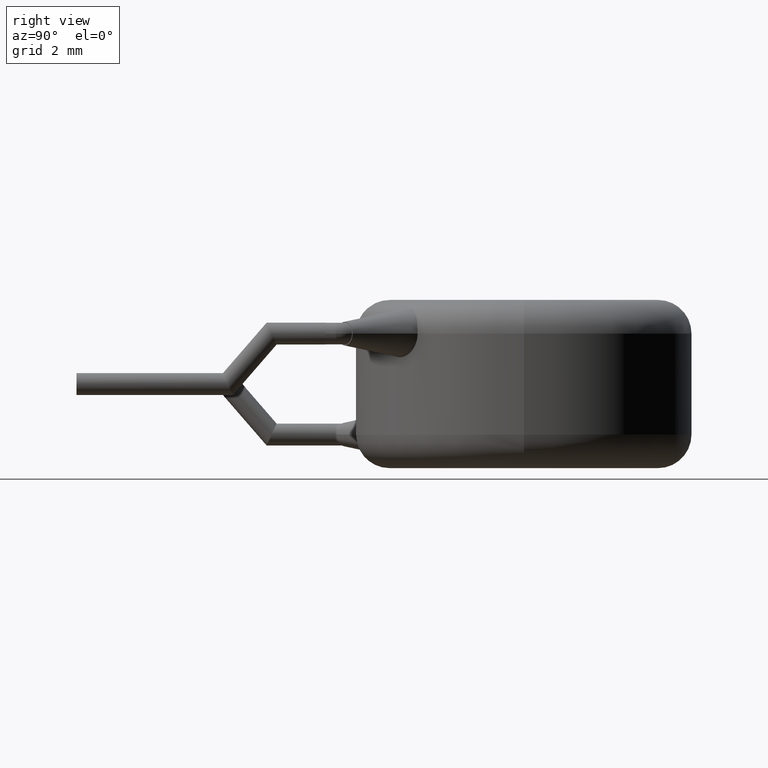
[diagram: clean part render]
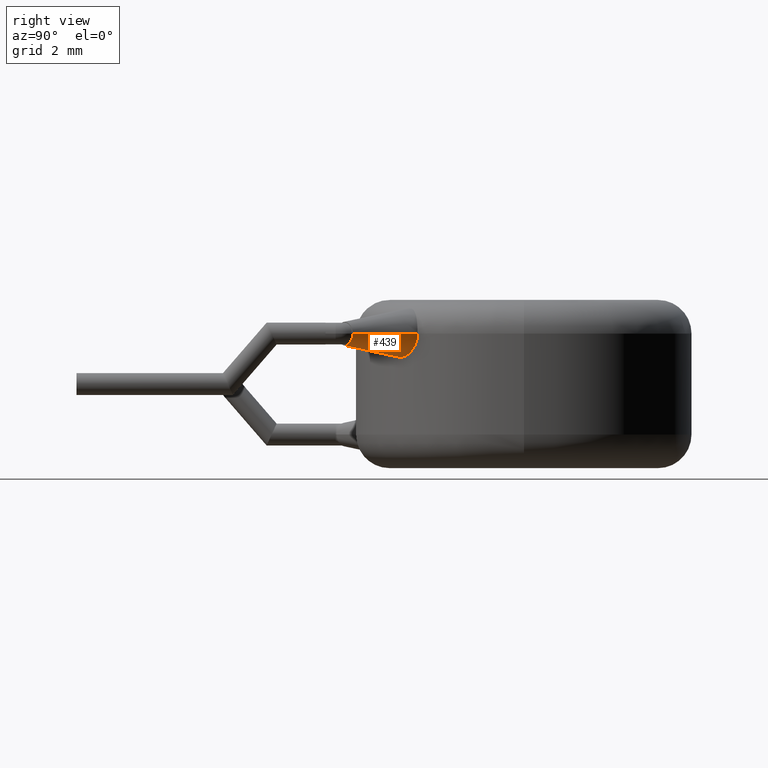
[diagram: same view with one face highlighted and labeled with its STEP entity id]
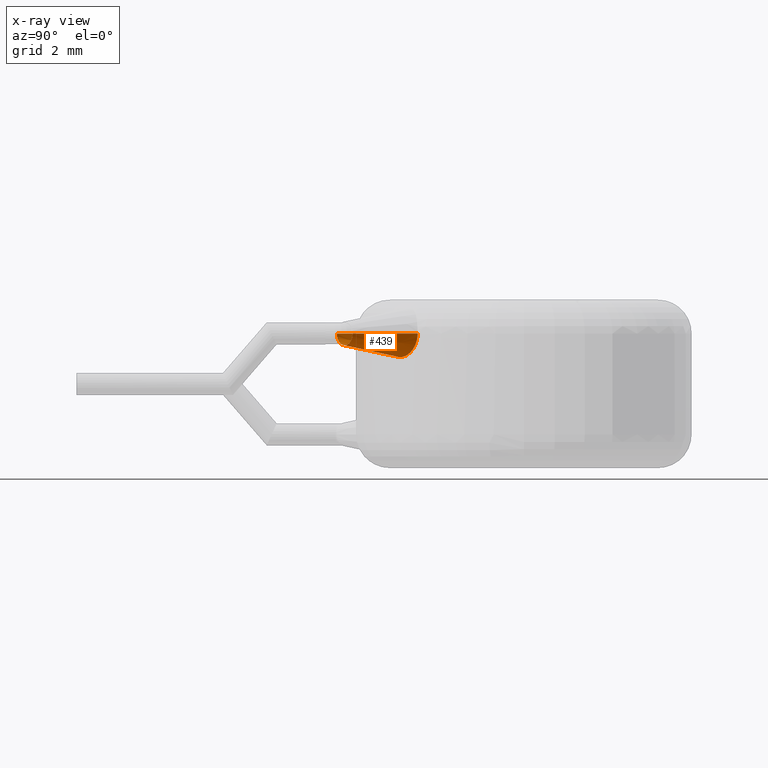
[diagram: x-ray of the same camera — body ghosted, the highlighted face saturated]
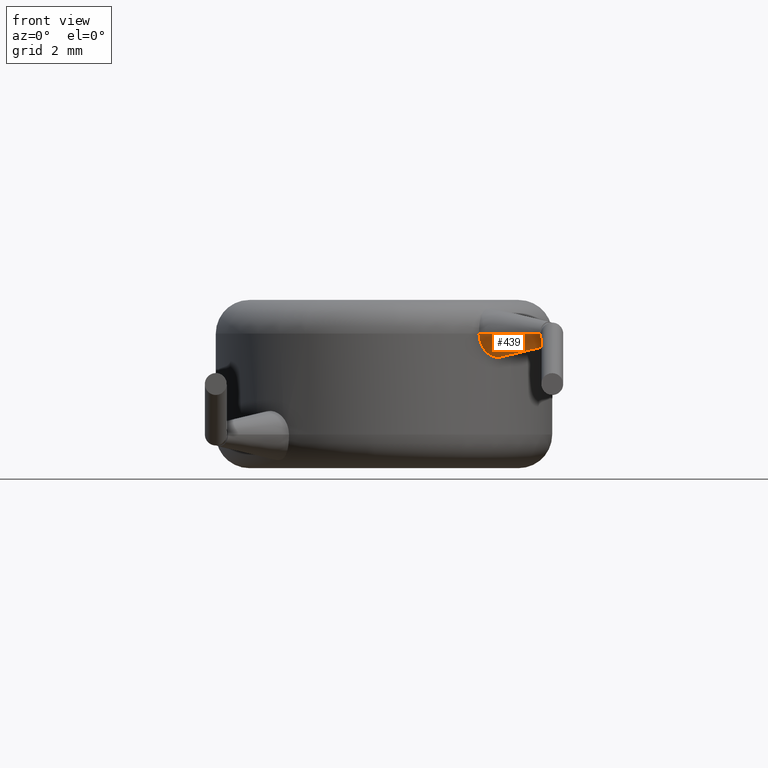
[diagram: same view with one face highlighted and labeled with its STEP entity id]
A machine part, right view. The second image highlights one B-rep face of the part: STEP entity #439.
The next image is the same camera in x-ray: the body ghosted, the highlighted face saturated — about 0% of this face is hidden behind the body in this view.
A second angle (front view) of the same face is appended — the face is thin or edge-on in the first view.
In plain terms, the highlighted conical surface has half-angle 9 deg.
Its self-contained STEP definition (entity closure, byte-faithful):
#206 = EDGE_CURVE ( 'NONE', #840, #2696, #1313, .T. ) ;
#222 = CARTESIAN_POINT ( 'NONE',  ( 2.823058014839938700, -4.126783668287930400, 3.999999999999995600 ) ) ;
#237 = CARTESIAN_POINT ( 'NONE',  ( 2.838850521277058700, -4.116096662251185200, 3.814314233154406000 ) ) ;
#357 = CARTESIAN_POINT ( 'NONE',  ( 4.894605617927503300, -5.329431099559555700, 4.000000000000000000 ) ) ;
#439 = ADVANCED_FACE ( 'NONE', ( #3739 ), #1965, .T. ) ;
#560 = CARTESIAN_POINT ( 'NONE',  ( 3.245470205725452300, -3.808042319663930800, 3.295953796013532800 ) ) ;
#755 = CARTESIAN_POINT ( 'NONE',  ( 5.152385533614069100, -5.092683311674163000, 4.000000000000000000 ) ) ;
#811 = CARTESIAN_POINT ( 'NONE',  ( 2.823058014839938700, -4.126783668287930400, 3.999999999999995600 ) ) ;
#836 = EDGE_CURVE ( 'NONE', #2029, #1780, #3436, .T. ) ;
#840 = VERTEX_POINT ( 'NONE', #811 ) ;
#1093 = DIRECTION ( 'NONE',  ( -0.6764222511011226400, 0.7365140448187595900, -0.0000000000000000000 ) ) ;
#1167 = CARTESIAN_POINT ( 'NONE',  ( 3.823711828187561100, -3.224462529883687500, 3.631243022543345000 ) ) ;
#1220 = DIRECTION ( 'NONE',  ( 0.6764222511011226400, -0.7365140448187595900, 0.0000000000000000000 ) ) ;
#1313 = B_SPLINE_CURVE_WITH_KNOTS ( 'NONE', 3,
 ( #222, #2155, #237, #1844, #2868, #2841, #560, #1555, #2853, #3151, #2491, #1167, #2128, #4153 ),
 .UNSPECIFIED., .F., .F.,
 ( 4, 2, 2, 2, 2, 2, 4 ),
 ( 1.971418446120571400E-007, 0.0002772903950009393700, 0.0005543836481572666600, 0.001108570154469920900, 0.001385663407626248200, 0.001662756660782575400, 0.002216943167095229900 ),
 .UNSPECIFIED. ) ;
#1345 = EDGE_CURVE ( 'NONE', #2029, #840, #3542, .T. ) ;
#1518 = DIRECTION ( 'NONE',  ( -0.7833105513275350200, 0.6216305817597404000, -1.915769668878478400E-017 ) ) ;
#1555 = CARTESIAN_POINT ( 'NONE',  ( 3.449982065002656000, -3.620247165914334300, 3.295796871140437700 ) ) ;
#1711 = CARTESIAN_POINT ( 'NONE',  ( 4.894605617927503300, -5.329431099559555700, 4.000000000000000000 ) ) ;
#1720 = ORIENTED_EDGE ( 'NONE', *, *, #1345, .T. ) ;
#1737 = VECTOR ( 'NONE', #2664, 1000.000000000000000 ) ;
#1780 = VERTEX_POINT ( 'NONE', #3871 ) ;
#1844 = CARTESIAN_POINT ( 'NONE',  ( 2.898455665012677600, -4.074343968432990500, 3.643401865778396900 ) ) ;
#1909 = CARTESIAN_POINT ( 'NONE',  ( 4.636825702240937400, -5.566178887444948500, 4.000000000000000000 ) ) ;
#1965 = CONICAL_SURFACE ( 'NONE', #3751, 0.3500000000000003100, 0.1570796326794901000 ) ;
#2029 = VERTEX_POINT ( 'NONE', #1909 ) ;
#2054 = VECTOR ( 'NONE', #1518, 999.9999999999998900 ) ;
#2128 = CARTESIAN_POINT ( 'NONE',  ( 3.872187539807329300, -3.163252069715731400, 3.812590445560609400 ) ) ;
#2155 = CARTESIAN_POINT ( 'NONE',  ( 2.823058014839938700, -4.126783668287931300, 3.906298808771946800 ) ) ;
#2183 = DIRECTION ( 'NONE',  ( 0.7365140448187598200, 0.6764222511011223100, 0.0000000000000000000 ) ) ;
#2332 = LINE ( 'NONE', #755, #1737 ) ;
#2491 = CARTESIAN_POINT ( 'NONE',  ( 3.690161664362291200, -3.374491010327670600, 3.435002840980615300 ) ) ;
#2528 = CARTESIAN_POINT ( 'NONE',  ( 4.636825702240937400, -5.566178887444948500, 4.000000000000000000 ) ) ;
#2664 = DIRECTION ( 'NONE',  ( -0.5528781901358557100, 0.8332620877443667200, 0.0000000000000000000 ) ) ;
#2696 = VERTEX_POINT ( 'NONE', #3619 ) ;
#2721 = DIRECTION ( 'NONE',  ( 0.7365140448187598200, 0.6764222511011223100, 0.0000000000000000000 ) ) ;
#2774 = ORIENTED_EDGE ( 'NONE', *, *, #836, .F. ) ;
#2841 = CARTESIAN_POINT ( 'NONE',  ( 3.101066154131742800, -3.924394155184226700, 3.371348197573673700 ) ) ;
#2853 = CARTESIAN_POINT ( 'NONE',  ( 3.516488495328564700, -3.555521876180064200, 3.313804148829668300 ) ) ;
#2868 = CARTESIAN_POINT ( 'NONE',  ( 2.942265645252924800, -4.043197134341952800, 3.565282495945167400 ) ) ;
#3151 = CARTESIAN_POINT ( 'NONE',  ( 3.636930563394243300, -3.432224239006242500, 3.383817017553753200 ) ) ;
#3306 = EDGE_CURVE ( 'NONE', #1780, #2696, #2332, .T. ) ;
#3398 = ORIENTED_EDGE ( 'NONE', *, *, #3306, .F. ) ;
#3436 = CIRCLE ( 'NONE', #3582, 0.3500000000000003100 ) ;
#3494 = ORIENTED_EDGE ( 'NONE', *, *, #206, .T. ) ;
#3542 = LINE ( 'NONE', #2528, #2054 ) ;
#3582 = AXIS2_PLACEMENT_3D ( 'NONE', #1711, #1220, #2183 ) ;
#3619 = CARTESIAN_POINT ( 'NONE',  ( 3.872187539807329300, -3.163252069715731800, 4.000000000000000000 ) ) ;
#3739 = FACE_OUTER_BOUND ( 'NONE', #3955, .T. ) ;
#3751 = AXIS2_PLACEMENT_3D ( 'NONE', #357, #1093, #2721 ) ;
#3871 = CARTESIAN_POINT ( 'NONE',  ( 5.152385533614069100, -5.092683311674163000, 4.000000000000000000 ) ) ;
#3955 = EDGE_LOOP ( 'NONE', ( #2774, #1720, #3494, #3398 ) ) ;
#4153 = CARTESIAN_POINT ( 'NONE',  ( 3.872187539807329300, -3.163252069715731800, 4.000000000000000000 ) ) ;